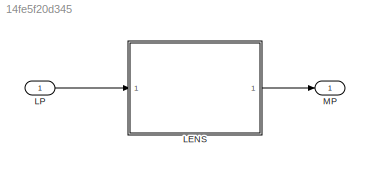
MODEL slx_14fe5f20d345
KIND model
CONFIG AbsTol = auto
CONFIG EnableMultiTasking = off
CONFIG FixedStep = auto
CONFIG MaxStep = auto
CONFIG MinStep = auto
CONFIG RelTol = 1e-3
CONFIG SampleTimeConstraint = Unconstrained
CONFIG SolverName = VariableStepAuto
CONFIG StartTime = 0.0
CONFIG StopTime = 10.0
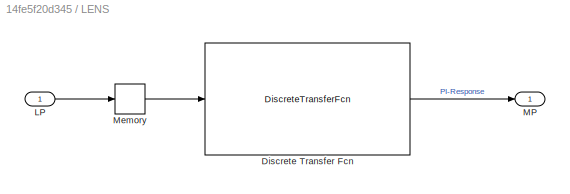
BLOCK [SubSystem] LENS
  Ports = [1, 1]
  RequestExecContextInheritance = off
BLOCK [DiscreteTransferFcn] LENS/Discrete Transfer Fcn
  Denominator = [1.0000   -1.9816    0.9816]
  InputPortMap = u0
  Numerator = [0.2466   -0.4875    0.2409]
  Ports = [1, 1]
  SampleTime = 0.1
BLOCK [Inport] LENS/LP
BLOCK [Outport] LENS/MP
BLOCK [Memory] LENS/Memory
  InheritSampleTime = on
  LinearizeAsDelay = on
BLOCK [Inport] LP
BLOCK [Outport] MP
LINE LENS/Discrete Transfer Fcn:1 -> LENS/MP:1
LINE LENS/LP:1 -> LENS/Memory:1
LINE LENS/Memory:1 -> LENS/Discrete Transfer Fcn:1
LINE LENS:1 -> MP:1
LINE LP:1 -> LENS:1
